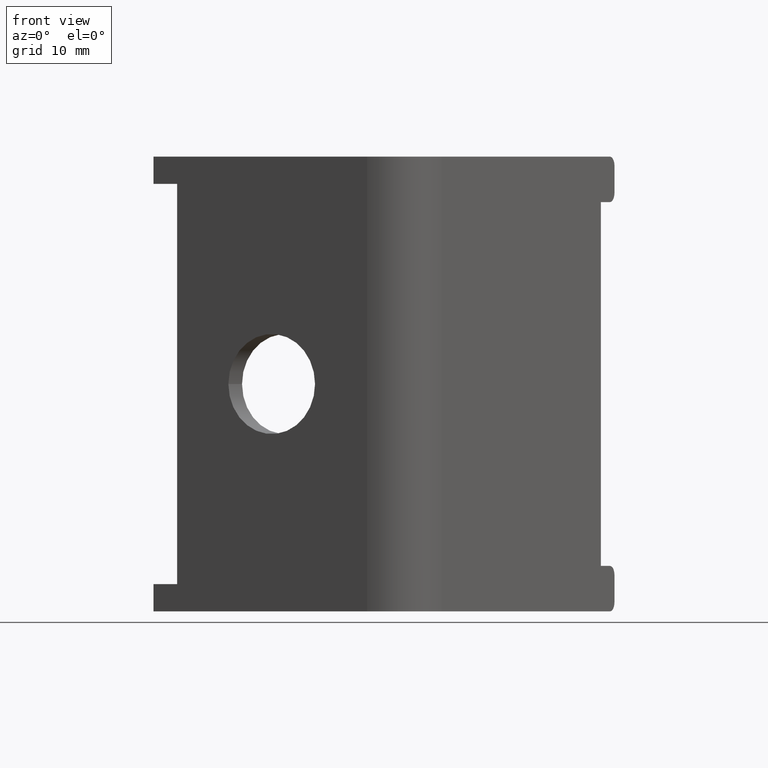
[diagram: clean part render]
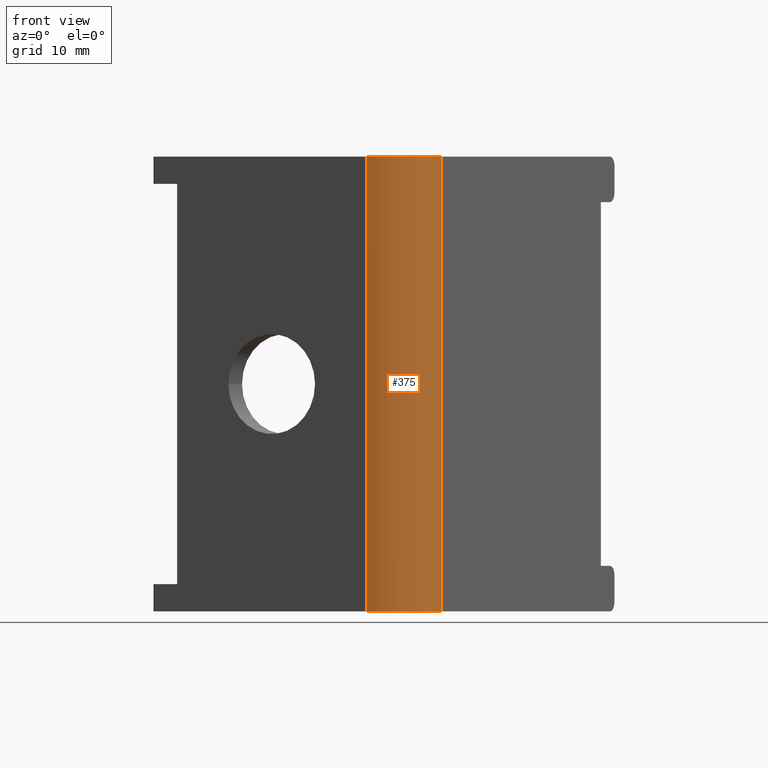
[diagram: same view with one face highlighted and labeled with its STEP entity id]
A machine part, front view. The second image highlights one B-rep face of the part: STEP entity #375.
In plain terms, the highlighted cylindrical surface (partial cylindrical patch) has radius 6 mm, axis along (-0, -0, -1).
Its self-contained STEP definition (entity closure, byte-faithful):
#15 = VECTOR ( 'NONE', #210, 1000.000000000000000 ) ;
#46 = DIRECTION ( 'NONE',  ( -0.000000000000000000, -0.000000000000000000, -1.000000000000000000 ) ) ;
#77 = DIRECTION ( 'NONE',  ( 0.000000000000000000, 0.000000000000000000, 1.000000000000000000 ) ) ;
#96 = VERTEX_POINT ( 'NONE', #615 ) ;
#126 = VERTEX_POINT ( 'NONE', #590 ) ;
#147 = VECTOR ( 'NONE', #421, 1000.000000000000000 ) ;
#188 = CARTESIAN_POINT ( 'NONE',  ( 614.6829510954501075, 1028.447854427240600, -25.00000000000000000 ) ) ;
#210 = DIRECTION ( 'NONE',  ( -0.000000000000000000, -0.000000000000000000, -1.000000000000000000 ) ) ;
#254 = CARTESIAN_POINT ( 'NONE',  ( 609.4867986727433617, 1031.447854427240827, -25.00000000000000000 ) ) ;
#263 = EDGE_CURVE ( 'NONE', #126, #96, #477, .T. ) ;
#328 = EDGE_LOOP ( 'NONE', ( #427, #568, #607, #538 ) ) ;
#375 = ADVANCED_FACE ( 'NONE', ( #748 ), #819, .T. ) ;
#388 = EDGE_CURVE ( 'NONE', #96, #443, #516, .T. ) ;
#398 = DIRECTION ( 'NONE',  ( -1.000000000000000000, 0.000000000000000000, 0.000000000000000000 ) ) ;
#421 = DIRECTION ( 'NONE',  ( -0.000000000000000000, -0.000000000000000000, -1.000000000000000000 ) ) ;
#427 = ORIENTED_EDGE ( 'NONE', *, *, #388, .T. ) ;
#443 = VERTEX_POINT ( 'NONE', #188 ) ;
#477 = LINE ( 'NONE', #700, #147 ) ;
#481 = CIRCLE ( 'NONE', #667, 6.000000000000005329 ) ;
#492 = EDGE_CURVE ( 'NONE', #126, #658, #481, .T. ) ;
#511 = CARTESIAN_POINT ( 'NONE',  ( 614.6829510954501075, 1028.447854427240600, 25.00000000000000000 ) ) ;
#516 = CIRCLE ( 'NONE', #727, 6.000000000000005329 ) ;
#538 = ORIENTED_EDGE ( 'NONE', *, *, #263, .T. ) ;
#568 = ORIENTED_EDGE ( 'NONE', *, *, #776, .F. ) ;
#590 = CARTESIAN_POINT ( 'NONE',  ( 606.4867986727433617, 1026.251702004534081, 25.00000000000000000 ) ) ;
#599 = DIRECTION ( 'NONE',  ( -1.000000000000000000, 0.000000000000000000, 0.000000000000000000 ) ) ;
#607 = ORIENTED_EDGE ( 'NONE', *, *, #492, .F. ) ;
#615 = CARTESIAN_POINT ( 'NONE',  ( 606.4867986727433617, 1026.251702004534081, -25.00000000000002842 ) ) ;
#622 = LINE ( 'NONE', #780, #15 ) ;
#641 = CARTESIAN_POINT ( 'NONE',  ( 609.4867986727433617, 1031.447854427240827, 25.00000000000000000 ) ) ;
#658 = VERTEX_POINT ( 'NONE', #511 ) ;
#667 = AXIS2_PLACEMENT_3D ( 'NONE', #641, #77, #698 ) ;
#698 = DIRECTION ( 'NONE',  ( -1.000000000000000000, 0.000000000000000000, 0.000000000000000000 ) ) ;
#700 = CARTESIAN_POINT ( 'NONE',  ( 606.4867986727433617, 1026.251702004534081, 25.00000000000000000 ) ) ;
#727 = AXIS2_PLACEMENT_3D ( 'NONE', #254, #755, #398 ) ;
#740 = AXIS2_PLACEMENT_3D ( 'NONE', #896, #46, #599 ) ;
#748 = FACE_OUTER_BOUND ( 'NONE', #328, .T. ) ;
#755 = DIRECTION ( 'NONE',  ( 0.000000000000000000, 0.000000000000000000, 1.000000000000000000 ) ) ;
#776 = EDGE_CURVE ( 'NONE', #658, #443, #622, .T. ) ;
#780 = CARTESIAN_POINT ( 'NONE',  ( 614.6829510954499938, 1028.447854427240827, 25.00000000000000000 ) ) ;
#819 = CYLINDRICAL_SURFACE ( 'NONE', #740, 6.000000000000005329 ) ;
#896 = CARTESIAN_POINT ( 'NONE',  ( 609.4867986727433617, 1031.447854427240827, 25.00000000000000000 ) ) ;